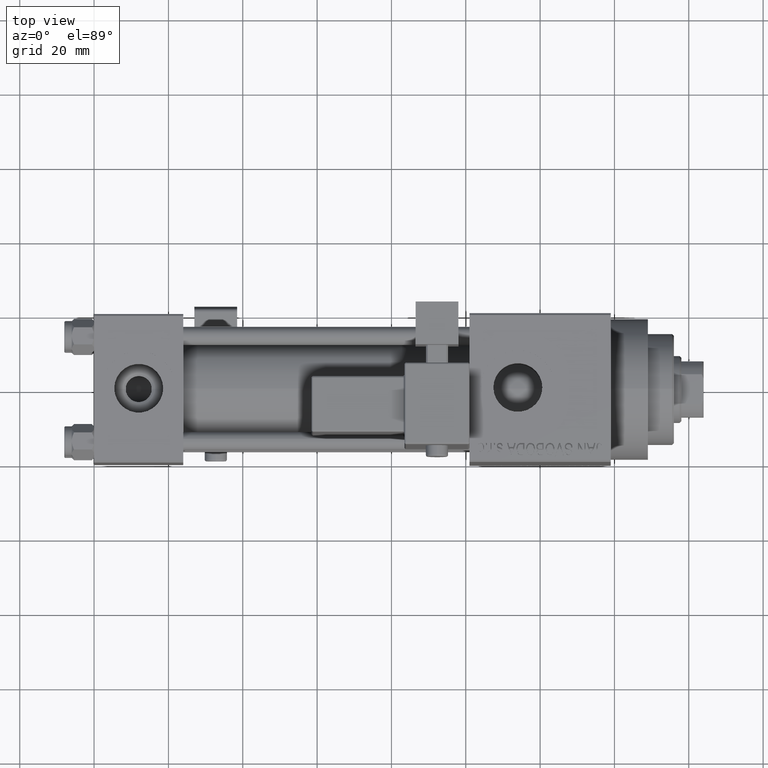
[diagram: clean part render]
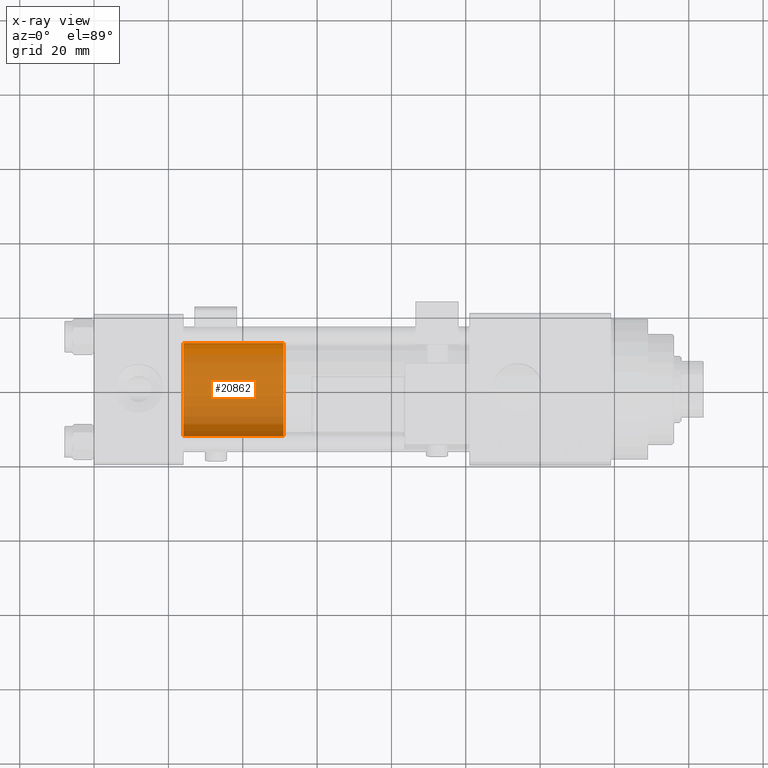
[diagram: x-ray — body ghosted, one internal face saturated and labeled with its STEP entity id]
A machine part, top view, then the same camera in x-ray: the body is ghosted and one INTERNAL B-rep face — a face not visible from any outside direction — is saturated and labeled: STEP entity #20862.
In plain terms, the highlighted cylindrical surface (partial cylindrical patch) has radius 12.5 mm, axis along (-1, 0, 0).
Its self-contained STEP definition (entity closure, byte-faithful):
#603 = CARTESIAN_POINT ( 'NONE',  ( 0.000000000000000000, 0.000000000000000000, 27.00000000000000000 ) ) ;
#5907 = DIRECTION ( 'NONE',  ( -1.000000000000000000, 0.000000000000000000, 0.000000000000000000 ) ) ;
#8776 = VERTEX_POINT ( 'NONE', #22432 ) ;
#9205 = VECTOR ( 'NONE', #41632, 1000.000000000000000 ) ;
#11482 = CIRCLE ( 'NONE', #37011, 12.50000000000000000 ) ;
#14007 = ORIENTED_EDGE ( 'NONE', *, *, #37666, .F. ) ;
#14338 = LINE ( 'NONE', #29591, #19732 ) ;
#14667 = AXIS2_PLACEMENT_3D ( 'NONE', #603, #42798, #26599 ) ;
#16032 = CARTESIAN_POINT ( 'NONE',  ( -12.50000000000000000, 0.000000000000000000, 0.000000000000000000 ) ) ;
#16771 = CARTESIAN_POINT ( 'NONE',  ( 0.000000000000000000, 0.000000000000000000, 0.000000000000000000 ) ) ;
#17151 = CYLINDRICAL_SURFACE ( 'NONE', #46934, 12.50000000000000000 ) ;
#17641 = DIRECTION ( 'NONE',  ( -0.000000000000000000, -0.000000000000000000, -1.000000000000000000 ) ) ;
#17885 = FACE_OUTER_BOUND ( 'NONE', #25768, .T. ) ;
#18172 = LINE ( 'NONE', #26429, #9205 ) ;
#19433 = ORIENTED_EDGE ( 'NONE', *, *, #39048, .T. ) ;
#19732 = VECTOR ( 'NONE', #29340, 1000.000000000000000 ) ;
#20862 = ADVANCED_FACE ( 'NONE', ( #17885 ), #17151, .T. ) ;
#21658 = ORIENTED_EDGE ( 'NONE', *, *, #45924, .F. ) ;
#22432 = CARTESIAN_POINT ( 'NONE',  ( 12.50000000000000000, 1.530808498934191521E-15, 27.00000000000000000 ) ) ;
#25768 = EDGE_LOOP ( 'NONE', ( #14007, #39850, #19433, #21658 ) ) ;
#25843 = VERTEX_POINT ( 'NONE', #29062 ) ;
#26429 = CARTESIAN_POINT ( 'NONE',  ( 12.50000000000000000, 1.530808498934191521E-15, 27.00000000000000000 ) ) ;
#26599 = DIRECTION ( 'NONE',  ( 1.000000000000000000, 0.000000000000000000, 0.000000000000000000 ) ) ;
#29062 = CARTESIAN_POINT ( 'NONE',  ( -12.50000000000000000, 0.000000000000000000, 27.00000000000000000 ) ) ;
#29340 = DIRECTION ( 'NONE',  ( -0.000000000000000000, -0.000000000000000000, -1.000000000000000000 ) ) ;
#29591 = CARTESIAN_POINT ( 'NONE',  ( -12.50000000000000000, 0.000000000000000000, 27.00000000000000000 ) ) ;
#31683 = CARTESIAN_POINT ( 'NONE',  ( 12.50000000000000000, 1.530808498934191521E-15, 0.000000000000000000 ) ) ;
#32725 = VERTEX_POINT ( 'NONE', #16032 ) ;
#34930 = VERTEX_POINT ( 'NONE', #31683 ) ;
#37011 = AXIS2_PLACEMENT_3D ( 'NONE', #16771, #47221, #43477 ) ;
#37666 = EDGE_CURVE ( 'NONE', #8776, #25843, #37756, .T. ) ;
#37756 = CIRCLE ( 'NONE', #14667, 12.50000000000000000 ) ;
#39048 = EDGE_CURVE ( 'NONE', #34930, #32725, #11482, .T. ) ;
#39850 = ORIENTED_EDGE ( 'NONE', *, *, #42124, .T. ) ;
#41632 = DIRECTION ( 'NONE',  ( -0.000000000000000000, -0.000000000000000000, -1.000000000000000000 ) ) ;
#42124 = EDGE_CURVE ( 'NONE', #8776, #34930, #18172, .T. ) ;
#42798 = DIRECTION ( 'NONE',  ( 0.000000000000000000, 0.000000000000000000, 1.000000000000000000 ) ) ;
#43477 = DIRECTION ( 'NONE',  ( 1.000000000000000000, 0.000000000000000000, 0.000000000000000000 ) ) ;
#45924 = EDGE_CURVE ( 'NONE', #25843, #32725, #14338, .T. ) ;
#46934 = AXIS2_PLACEMENT_3D ( 'NONE', #48324, #17641, #5907 ) ;
#47221 = DIRECTION ( 'NONE',  ( 0.000000000000000000, 0.000000000000000000, 1.000000000000000000 ) ) ;
#48324 = CARTESIAN_POINT ( 'NONE',  ( 0.000000000000000000, 0.000000000000000000, 27.00000000000000000 ) ) ;